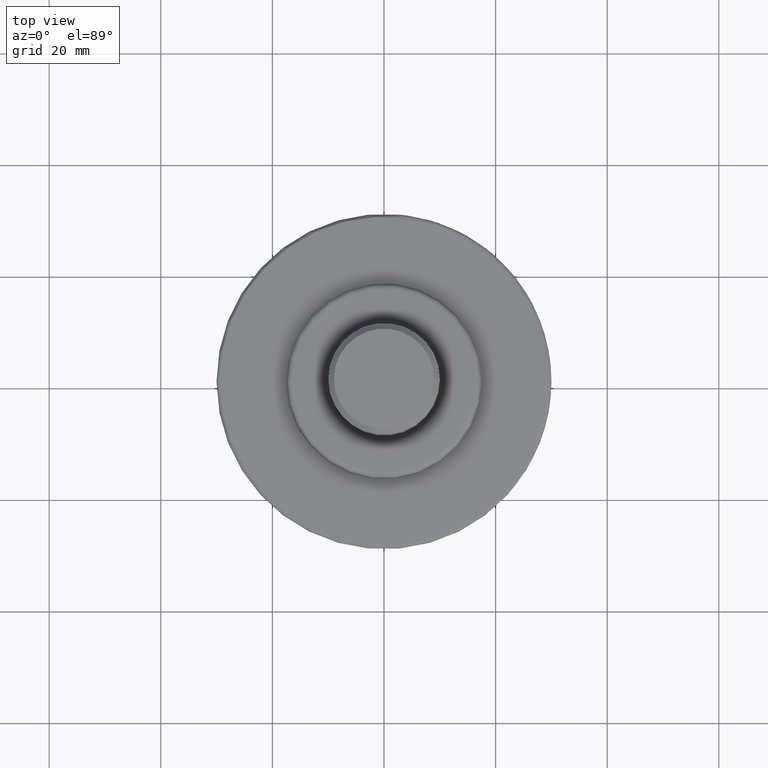
[diagram: clean part render]
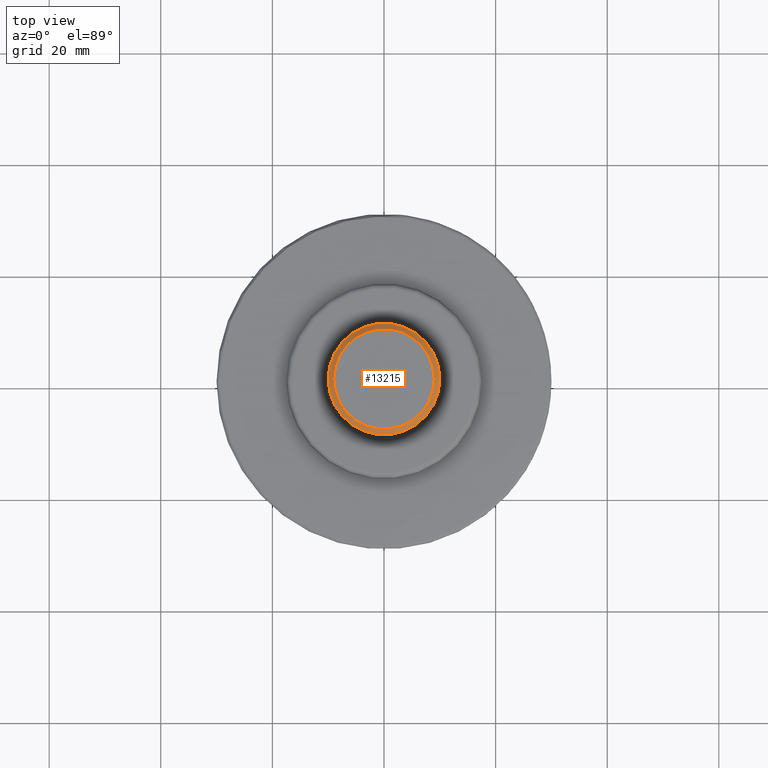
[diagram: same view with one face highlighted and labeled with its STEP entity id]
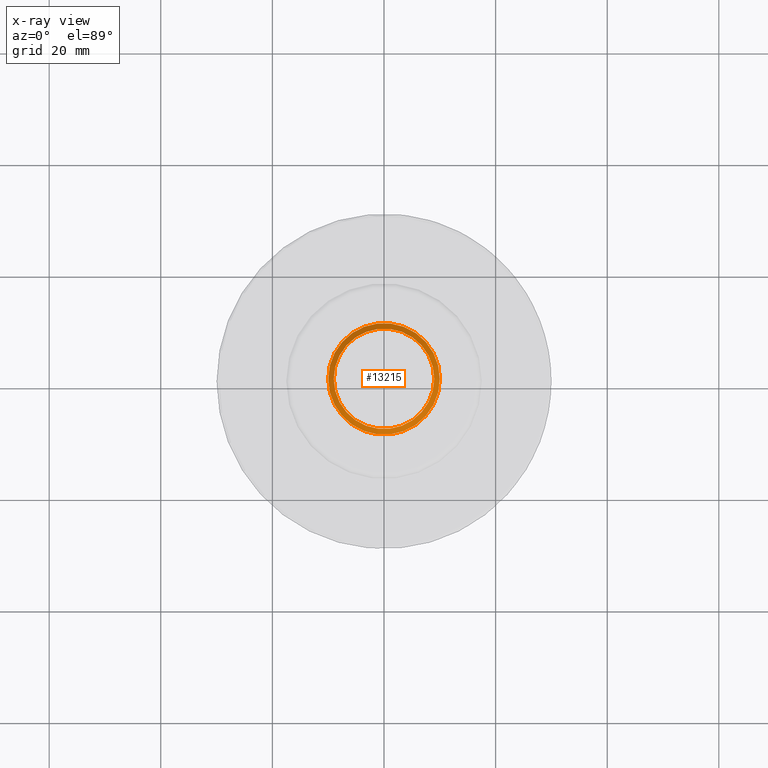
[diagram: x-ray of the same camera — body ghosted, the highlighted face saturated]
A machine part, top view. The second image highlights one B-rep face of the part: STEP entity #13215.
The next image is the same camera in x-ray: the body ghosted, the highlighted face saturated — about 0% of this face is hidden behind the body in this view.
In plain terms, the highlighted conical surface has half-angle 45 deg.
Its self-contained STEP definition (entity closure, byte-faithful):
#1058 = ORIENTED_EDGE ( 'NONE', *, *, #10666, .F. ) ;
#1992 = CARTESIAN_POINT ( 'NONE',  ( 0.000000000000000000, 0.000000000000000000, 75.00000000000000000 ) ) ;
#2082 = CARTESIAN_POINT ( 'NONE',  ( 0.000000000000000000, 0.000000000000000000, 75.00000000000000000 ) ) ;
#2134 = DIRECTION ( 'NONE',  ( 1.000000000000000000, 0.000000000000000000, 0.000000000000000000 ) ) ;
#2157 = DIRECTION ( 'NONE',  ( -1.000000000000000000, 0.000000000000000000, 0.000000000000000000 ) ) ;
#2291 = EDGE_LOOP ( 'NONE', ( #3368 ) ) ;
#2918 = AXIS2_PLACEMENT_3D ( 'NONE', #2082, #11620, #2134 ) ;
#3368 = ORIENTED_EDGE ( 'NONE', *, *, #9749, .F. ) ;
#4013 = FACE_BOUND ( 'NONE', #2291, .T. ) ;
#5549 = CARTESIAN_POINT ( 'NONE',  ( 0.000000000000000000, 0.000000000000000000, 73.99999999999998579 ) ) ;
#6308 = CARTESIAN_POINT ( 'NONE',  ( 8.999999999999994671, 0.000000000000000000, 75.00000000000000000 ) ) ;
#7942 = DIRECTION ( 'NONE',  ( 0.000000000000000000, 0.000000000000000000, -1.000000000000000000 ) ) ;
#8028 = VERTEX_POINT ( 'NONE', #6308 ) ;
#9311 = FACE_OUTER_BOUND ( 'NONE', #11712, .T. ) ;
#9749 = EDGE_CURVE ( 'NONE', #8028, #8028, #9931, .T. ) ;
#9931 = CIRCLE ( 'NONE', #2918, 8.999999999999994671 ) ;
#10666 = EDGE_CURVE ( 'NONE', #12732, #12732, #15418, .T. ) ;
#11620 = DIRECTION ( 'NONE',  ( 0.000000000000000000, 0.000000000000000000, 1.000000000000000000 ) ) ;
#11712 = EDGE_LOOP ( 'NONE', ( #1058 ) ) ;
#11765 = CONICAL_SURFACE ( 'NONE', #12154, 8.999999999999994671, 0.7853981633974439491 ) ;
#12154 = AXIS2_PLACEMENT_3D ( 'NONE', #1992, #7942, #2157 ) ;
#12347 = CARTESIAN_POINT ( 'NONE',  ( 10.00000000000000000, 0.000000000000000000, 73.99999999999998579 ) ) ;
#12732 = VERTEX_POINT ( 'NONE', #12347 ) ;
#12994 = DIRECTION ( 'NONE',  ( 1.000000000000000000, 0.000000000000000000, 0.000000000000000000 ) ) ;
#13215 = ADVANCED_FACE ( 'NONE', ( #9311, #4013 ), #11765, .T. ) ;
#15351 = DIRECTION ( 'NONE',  ( 0.000000000000000000, 0.000000000000000000, -1.000000000000000000 ) ) ;
#15386 = AXIS2_PLACEMENT_3D ( 'NONE', #5549, #15351, #12994 ) ;
#15418 = CIRCLE ( 'NONE', #15386, 10.00000000000000000 ) ;